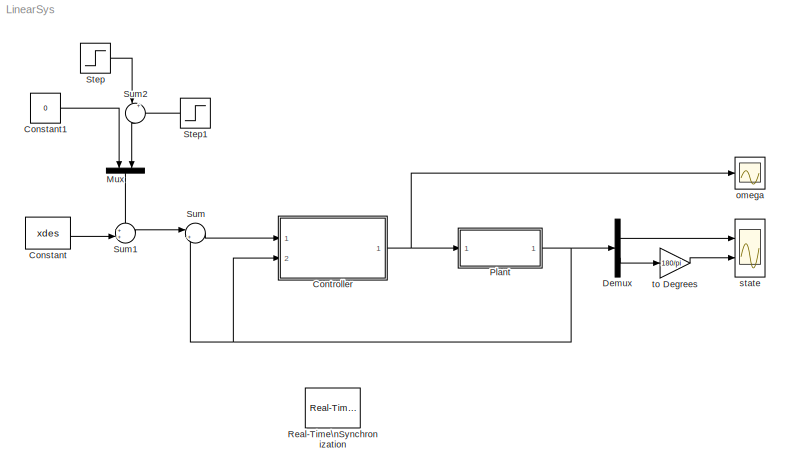
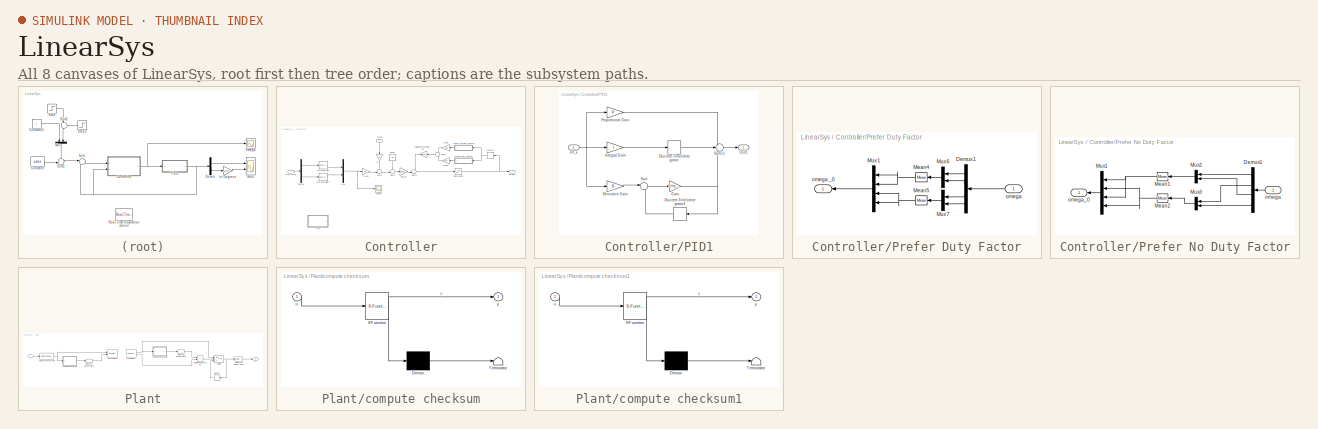
[diagram: thumbnail index - all 8 canvases of the model, root first then tree order]
MODEL LinearSys
KIND model
BLOCK [Constant] Constant
  SID = 16
  Value = xdes
BLOCK [Constant] Constant1
  SID = 122
  Value = 0
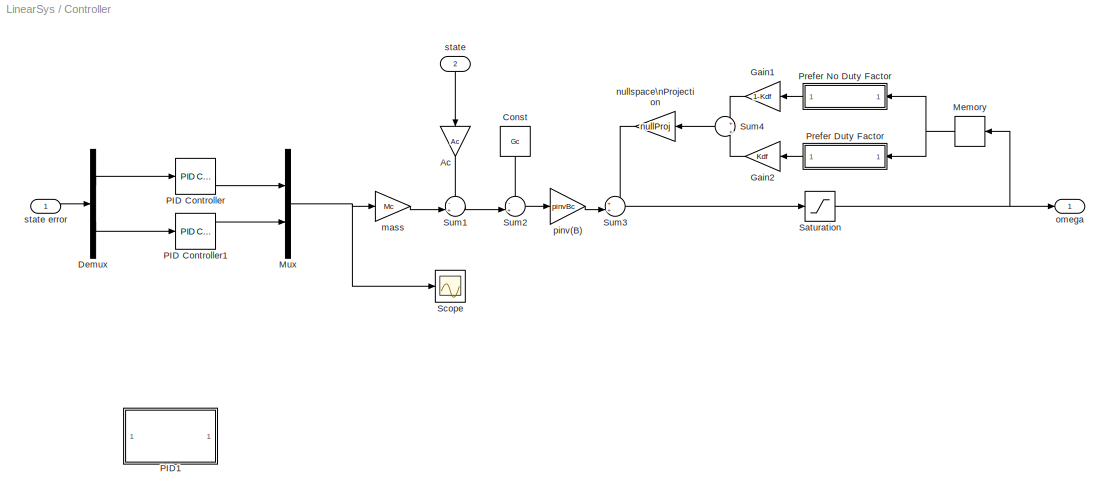
BLOCK [SubSystem] Controller
  FunctionWithSeparateData = off
  MaskHideContents = off
  MinAlgLoopOccurrences = off
  Opaque = off
  Ports = [2, 1]
  PropExecContextOutsideSubsystem = off
  RTWSystemCode = Auto
  RequestExecContextInheritance = off
  SID = 81
BLOCK [Gain] Controller/Ac
  Gain = Ac
  Multiplication = Matrix(K*u)
  OutDataTypeStr = Inherit: Inherit via internal rule
  ParamDataTypeStr = Inherit: Inherit via internal rule
  SID = 31
  SaturateOnIntegerOverflow = off
BLOCK [Constant] Controller/Const
  SID = 34
  Value = Gc
BLOCK [Demux] Controller/Demux
  DisplayOption = bar
  Outputs = 2
  Ports = [1, 2]
  SID = 219
BLOCK [Gain] Controller/Gain1
  Gain = 1-Kdf
  OutDataTypeStr = Inherit: Inherit via internal rule
  ParamDataTypeStr = Inherit: Inherit via internal rule
  SID = 41
  SaturateOnIntegerOverflow = off
BLOCK [Gain] Controller/Gain2
  Gain = Kdf
  OutDataTypeStr = Inherit: Inherit via internal rule
  ParamDataTypeStr = Inherit: Inherit via internal rule
  SID = 42
  SaturateOnIntegerOverflow = off
BLOCK [Memory] Controller/Memory
  InheritSampleTime = on
  SID = 43
  X0 = omega_0
BLOCK [Mux] Controller/Mux
  DisplayOption = bar
  Inputs = 2
  Ports = [2, 1]
  SID = 256
BLOCK [Reference] Controller/PID Controller  REF=simulink/Continuous/PID Controller
  AntiWindupMode = none
  Controller = PID
  D = Kdy
  DOutDataTypeStr = Inherit: Inherit via internal rule
  DOutMax = []
  DOutMin = []
  DParamDataTypeStr = Inherit: Inherit via internal rule
  DParamMax = []
  DParamMin = []
  ExternalReset = none
  FilterContinuousStateAttributes = ''
  FilterMethod = Forward Euler
  FilterOutDataTypeStr = Inherit: Inherit via internal rule
  FilterOutMax = []
  FilterOutMin = []
  FilterRTWStateStorageClass = Auto
  FilterStateMustResolveToSignalObject = off
  Form = Parallel
  I = Kiy
  IOutDataTypeStr = Inherit: Inherit via internal rule
  IOutMax = []
  IOutMin = []
  IParamDataTypeStr = Inherit: Inherit via internal rule
  IParamMax = []
  IParamMin = []
  IgnoreLimit = off
  InitialConditionForFilter = 0
  InitialConditionForIntegrator = 0
  InitialConditionSource = internal
  IntegratorContinuousStateAttributes = ''
  IntegratorMethod = Forward Euler
  IntegratorOutDataTypeStr = Inherit: Inherit via internal rule
  IntegratorOutMax = []
  IntegratorOutMin = []
  IntegratorRTWStateStorageClass = Auto
  IntegratorStateMustResolveToSignalObject = off
  Kb = 1
  KbOutDataTypeStr = Inherit: Inherit via internal rule
  KbOutMax = []
  KbOutMin = []
  KbParamDataTypeStr = Inherit: Inherit via internal rule
  KbParamMax = []
  KbParamMin = []
  Kt = 1
  KtOutDataTypeStr = Inherit: Inherit via internal rule
  KtOutMax = []
  KtOutMin = []
  KtParamDataTypeStr = Inherit: Inherit via internal rule
  KtParamMax = []
  KtParamMin = []
  LimitOutput = off
  LinearizeAsGain = on
  LockScale = off
  LowerSaturationLimit = -inf
  N = 1000
  NOutDataTypeStr = Inherit: Inherit via internal rule
  NOutMax = []
  NOutMin = []
  NParamDataTypeStr = Inherit: Inherit via internal rule
  NParamMax = []
  NParamMin = []
  P = Kpy
  POutDataTypeStr = Inherit: Inherit via internal rule
  POutMax = []
  POutMin = []
  PParamDataTypeStr = Inherit: Inherit via internal rule
  PParamMax = []
  PParamMin = []
  Ports = [1, 1]
  RndMeth = Floor
  SID = 254
  SampleTime = .01
  SaturateOnIntegerOverflow = off
  SaturationOutDataTypeStr = Inherit: Same as input
  SaturationOutMax = []
  SaturationOutMin = []
  SourceBlock = simulink/Continuous/PID Controller
  SourceType = PID 1dof
  SumAccumDataTypeStr = Inherit: Inherit via internal rule
  SumDAccumDataTypeStr = Inherit: Inherit via internal rule
  SumDOutDataTypeStr = Inherit: Inherit via internal rule
  SumDOutMax = []
  SumDOutMin = []
  SumI1AccumDataTypeStr = Inherit: Inherit via internal rule
  SumI1OutDataTypeStr = Inherit: Inherit via internal rule
  SumI1OutMax = []
  SumI1OutMin = []
  SumI2AccumDataTypeStr = Inherit: Inherit via internal rule
  SumI2OutDataTypeStr = Inherit: Inherit via internal rule
  SumI2OutMax = []
  SumI2OutMin = []
  SumI3AccumDataTypeStr = Inherit: Inherit via internal rule
  SumI3OutDataTypeStr = Inherit: Inherit via internal rule
  SumI3OutMax = []
  SumI3OutMin = []
  SumOutDataTypeStr = Inherit: Inherit via internal rule
  SumOutMax = []
  SumOutMin = []
  TimeDomain = Discrete-time
  TrackingMode = off
  UpperSaturationLimit = inf
  ZeroCross = on
BLOCK [Reference] Controller/PID Controller1  REF=simulink/Continuous/PID Controller
  AntiWindupMode = none
  Controller = PID
  D = Kdth
  DOutDataTypeStr = Inherit: Inherit via internal rule
  DOutMax = []
  DOutMin = []
  DParamDataTypeStr = Inherit: Inherit via internal rule
  DParamMax = []
  DParamMin = []
  ExternalReset = none
  FilterContinuousStateAttributes = ''
  FilterMethod = Forward Euler
  FilterOutDataTypeStr = Inherit: Inherit via internal rule
  FilterOutMax = []
  FilterOutMin = []
  FilterRTWStateStorageClass = Auto
  FilterStateMustResolveToSignalObject = off
  Form = Parallel
  I = Kith
  IOutDataTypeStr = Inherit: Inherit via internal rule
  IOutMax = []
  IOutMin = []
  IParamDataTypeStr = Inherit: Inherit via internal rule
  IParamMax = []
  IParamMin = []
  IgnoreLimit = off
  InitialConditionForFilter = 0
  InitialConditionForIntegrator = 0
  InitialConditionSource = internal
  IntegratorContinuousStateAttributes = ''
  IntegratorMethod = Forward Euler
  IntegratorOutDataTypeStr = Inherit: Inherit via internal rule
  IntegratorOutMax = []
  IntegratorOutMin = []
  IntegratorRTWStateStorageClass = Auto
  IntegratorStateMustResolveToSignalObject = off
  Kb = 1
  KbOutDataTypeStr = Inherit: Inherit via internal rule
  KbOutMax = []
  KbOutMin = []
  KbParamDataTypeStr = Inherit: Inherit via internal rule
  KbParamMax = []
  KbParamMin = []
  Kt = 1
  KtOutDataTypeStr = Inherit: Inherit via internal rule
  KtOutMax = []
  KtOutMin = []
  KtParamDataTypeStr = Inherit: Inherit via internal rule
  KtParamMax = []
  KtParamMin = []
  LimitOutput = off
  LinearizeAsGain = on
  LockScale = off
  LowerSaturationLimit = -inf
  N = 1000
  NOutDataTypeStr = Inherit: Inherit via internal rule
  NOutMax = []
  NOutMin = []
  NParamDataTypeStr = Inherit: Inherit via internal rule
  NParamMax = []
  NParamMin = []
  P = Kpth
  POutDataTypeStr = Inherit: Inherit via internal rule
  POutMax = []
  POutMin = []
  PParamDataTypeStr = Inherit: Inherit via internal rule
  PParamMax = []
  PParamMin = []
  Ports = [1, 1]
  RndMeth = Floor
  SID = 255
  SampleTime = .01
  SaturateOnIntegerOverflow = off
  SaturationOutDataTypeStr = Inherit: Same as input
  SaturationOutMax = []
  SaturationOutMin = []
  SourceBlock = simulink/Continuous/PID Controller
  SourceType = PID 1dof
  SumAccumDataTypeStr = Inherit: Inherit via internal rule
  SumDAccumDataTypeStr = Inherit: Inherit via internal rule
  SumDOutDataTypeStr = Inherit: Inherit via internal rule
  SumDOutMax = []
  SumDOutMin = []
  SumI1AccumDataTypeStr = Inherit: Inherit via internal rule
  SumI1OutDataTypeStr = Inherit: Inherit via internal rule
  SumI1OutMax = []
  SumI1OutMin = []
  SumI2AccumDataTypeStr = Inherit: Inherit via internal rule
  SumI2OutDataTypeStr = Inherit: Inherit via internal rule
  SumI2OutMax = []
  SumI2OutMin = []
  SumI3AccumDataTypeStr = Inherit: Inherit via internal rule
  SumI3OutDataTypeStr = Inherit: Inherit via internal rule
  SumI3OutMax = []
  SumI3OutMin = []
  SumOutDataTypeStr = Inherit: Inherit via internal rule
  SumOutMax = []
  SumOutMin = []
  TimeDomain = Discrete-time
  TrackingMode = off
  UpperSaturationLimit = inf
  ZeroCross = on
BLOCK [SubSystem] Controller/PID1
  Commented = on
  FunctionWithSeparateData = off
  MaskHideContents = off
  MinAlgLoopOccurrences = off
  Opaque = off
  Ports = [1, 1]
  PropExecContextOutsideSubsystem = off
  RTWSystemCode = Auto
  RequestExecContextInheritance = off
  SID = 208
BLOCK [Gain] Controller/PID1/Derivative Gain
  Gain = D
  Multiplication = Matrix(K*u)
  OutDataTypeStr = Inherit: Inherit via internal rule
  ParamDataTypeStr = Inherit: Inherit via internal rule
  SID = 210
  SaturateOnIntegerOverflow = off
BLOCK [DiscreteIntegrator] Controller/PID1/Discrete-Time\nIntegrator
  ICPrevOutput = DiscIntNeverNeededParam
  ICPrevScaledInput = DiscIntNeverNeededParam
  Ports = [1, 1]
  SID = 211
  SampleTime = .01
BLOCK [DiscreteIntegrator] Controller/PID1/Discrete-Time\nIntegrator1
  ICPrevOutput = DiscIntNeverNeededParam
  ICPrevScaledInput = DiscIntNeverNeededParam
  Ports = [1, 1]
  SID = 212
  SampleTime = .01
BLOCK [Gain] Controller/PID1/Gain
  Gain = Filter_Coef
  OutDataTypeStr = Inherit: Inherit via internal rule
  ParamDataTypeStr = Inherit: Inherit via internal rule
  SID = 213
  SaturateOnIntegerOverflow = off
BLOCK [Gain] Controller/PID1/Integral Gain
  DisableCoverage = on
  Gain = I
  Multiplication = Matrix(K*u)
  OutDataTypeStr = Inherit: Inherit via internal rule
  ParamDataTypeStr = Inherit: Inherit via internal rule
  SID = 214
  SaturateOnIntegerOverflow = off
BLOCK [Outport] Controller/PID1/Out1
  IconDisplay = Port number
  SID = 218
BLOCK [Gain] Controller/PID1/Proportional Gain
  Gain = P
  Multiplication = Matrix(K*u)
  OutDataTypeStr = Inherit: Inherit via internal rule
  ParamDataTypeStr = Inherit: Inherit via internal rule
  SID = 215
  SaturateOnIntegerOverflow = off
BLOCK [Sum] Controller/PID1/Sum
  IconShape = round
  InputSameDT = off
  Inputs = |+-
  OutDataTypeStr = Inherit: Inherit via internal rule
  Ports = [2, 1]
  SID = 216
  SaturateOnIntegerOverflow = off
BLOCK [Sum] Controller/PID1/Sum11
  IconShape = round
  InputSameDT = off
  Inputs = +++
  OutDataTypeStr = Inherit: Inherit via internal rule
  Ports = [3, 1]
  SID = 217
  SaturateOnIntegerOverflow = off
BLOCK [Inport] Controller/PID1/err_x
  IconDisplay = Port number
  SID = 209
BLOCK [SubSystem] Controller/Prefer Duty Factor
  FunctionWithSeparateData = off
  MaskHideContents = off
  MinAlgLoopOccurrences = off
  Opaque = off
  Ports = [1, 1]
  PropExecContextOutsideSubsystem = off
  RTWSystemCode = Auto
  RequestExecContextInheritance = off
  SID = 99
BLOCK [Demux] Controller/Prefer Duty Factor/Demux1
  DisplayOption = bar
  Ports = [1, 4]
  SID = 101
BLOCK [Reference] Controller/Prefer Duty Factor/Mean4  REF=dspstat3/Mean
  InputProcessing = Columns as channels (frame based)
  LockScale = off
  Ports = [1, 1]
  SID = 102
  SourceBlock = dspstat3/Mean
  SourceType = Mean
  UserData = DataTag0
  UserDataPersistent = on
  accumDataTypeStr = Inherit: Same as input
  accumFracLength = 30
  accumLastDataTypeStr = Inherit: Same as input
  accumMode = Same as input
  accumWordLength = 32
  additionalParams = off
  allowOverrides = on
  dimension = 1
  directionMode = Each column
  outputDataTypeStr = Inherit: Same as accumulator
  outputFracLength = 30
  outputLastDataTypeStr = Inherit: Same as accumulator
  outputMax = []
  outputMin = []
  outputMode = Same as accumulator
  outputWordLength = 32
  overflowMode = off
  reset_popup = None
  roiEnable = off
  roiFlag = off
  roiOutput = Individual statistics for each ROI
  roiPortion = Entire ROI
  roiType = Rectangles
  roundingMode = Floor
  run = off
  treatSBRowAsCol = on
BLOCK [Reference] Controller/Prefer Duty Factor/Mean5  REF=dspstat3/Mean
  InputProcessing = Columns as channels (frame based)
  LockScale = off
  Ports = [1, 1]
  SID = 103
  SourceBlock = dspstat3/Mean
  SourceType = Mean
  UserData = DataTag1
  UserDataPersistent = on
  accumDataTypeStr = Inherit: Same as input
  accumFracLength = 30
  accumLastDataTypeStr = Inherit: Same as input
  accumMode = Same as input
  accumWordLength = 32
  additionalParams = off
  allowOverrides = on
  dimension = 1
  directionMode = Each column
  outputDataTypeStr = Inherit: Same as accumulator
  outputFracLength = 30
  outputLastDataTypeStr = Inherit: Same as accumulator
  outputMax = []
  outputMin = []
  outputMode = Same as accumulator
  outputWordLength = 32
  overflowMode = off
  reset_popup = None
  roiEnable = off
  roiFlag = off
  roiOutput = Individual statistics for each ROI
  roiPortion = Entire ROI
  roiType = Rectangles
  roundingMode = Floor
  run = off
  treatSBRowAsCol = on
BLOCK [Mux] Controller/Prefer Duty Factor/Mux1
  DisplayOption = bar
  Ports = [4, 1]
  SID = 104
BLOCK [Mux] Controller/Prefer Duty Factor/Mux6
  DisplayOption = bar
  Inputs = 2
  Ports = [2, 1]
  SID = 105
BLOCK [Mux] Controller/Prefer Duty Factor/Mux7
  DisplayOption = bar
  Inputs = 2
  Ports = [2, 1]
  SID = 106
BLOCK [Inport] Controller/Prefer Duty Factor/omega
  IconDisplay = Port number
  SID = 100
BLOCK [Outport] Controller/Prefer Duty Factor/omega _0
  IconDisplay = Port number
  SID = 107
BLOCK [SubSystem] Controller/Prefer No Duty Factor
  FunctionWithSeparateData = off
  MaskHideContents = off
  MinAlgLoopOccurrences = off
  Opaque = off
  Ports = [1, 1]
  PropExecContextOutsideSubsystem = off
  RTWSystemCode = Auto
  RequestExecContextInheritance = off
  SID = 108
BLOCK [Demux] Controller/Prefer No Duty Factor/Demux1
  DisplayOption = bar
  Ports = [1, 4]
  SID = 110
BLOCK [Reference] Controller/Prefer No Duty Factor/Mean1  REF=dspstat3/Mean
  InputProcessing = Columns as channels (frame based)
  LockScale = off
  Ports = [1, 1]
  SID = 111
  SourceBlock = dspstat3/Mean
  SourceType = Mean
  UserData = DataTag2
  UserDataPersistent = on
  accumDataTypeStr = Inherit: Same as input
  accumFracLength = 30
  accumLastDataTypeStr = Inherit: Same as input
  accumMode = Same as input
  accumWordLength = 32
  additionalParams = off
  allowOverrides = on
  dimension = 1
  directionMode = Each column
  outputDataTypeStr = Inherit: Same as accumulator
  outputFracLength = 30
  outputLastDataTypeStr = Inherit: Same as accumulator
  outputMax = []
  outputMin = []
  outputMode = Same as accumulator
  outputWordLength = 32
  overflowMode = off
  reset_popup = None
  roiEnable = off
  roiFlag = off
  roiOutput = Individual statistics for each ROI
  roiPortion = Entire ROI
  roiType = Rectangles
  roundingMode = Floor
  run = off
  treatSBRowAsCol = on
BLOCK [Reference] Controller/Prefer No Duty Factor/Mean2  REF=dspstat3/Mean
  InputProcessing = Columns as channels (frame based)
  LockScale = off
  Ports = [1, 1]
  SID = 112
  SourceBlock = dspstat3/Mean
  SourceType = Mean
  UserData = DataTag3
  UserDataPersistent = on
  accumDataTypeStr = Inherit: Same as input
  accumFracLength = 30
  accumLastDataTypeStr = Inherit: Same as input
  accumMode = Same as input
  accumWordLength = 32
  additionalParams = off
  allowOverrides = on
  dimension = 1
  directionMode = Each column
  outputDataTypeStr = Inherit: Same as accumulator
  outputFracLength = 30
  outputLastDataTypeStr = Inherit: Same as accumulator
  outputMax = []
  outputMin = []
  outputMode = Same as accumulator
  outputWordLength = 32
  overflowMode = off
  reset_popup = None
  roiEnable = off
  roiFlag = off
  roiOutput = Individual statistics for each ROI
  roiPortion = Entire ROI
  roiType = Rectangles
  roundingMode = Floor
  run = off
  treatSBRowAsCol = on
BLOCK [Mux] Controller/Prefer No Duty Factor/Mux1
  DisplayOption = bar
  Ports = [4, 1]
  SID = 113
BLOCK [Mux] Controller/Prefer No Duty Factor/Mux2
  DisplayOption = bar
  Inputs = 2
  Ports = [2, 1]
  SID = 114
BLOCK [Mux] Controller/Prefer No Duty Factor/Mux3
  DisplayOption = bar
  Inputs = 2
  Ports = [2, 1]
  SID = 115
BLOCK [Inport] Controller/Prefer No Duty Factor/omega
  IconDisplay = Port number
  SID = 109
BLOCK [Outport] Controller/Prefer No Duty Factor/omega_0
  IconDisplay = Port number
  SID = 116
BLOCK [Saturate] Controller/Saturation
  InputPortMap = u0
  LowerLimit = 10
  Ports = [1, 1]
  SID = 80
  UpperLimit = 100
BLOCK [Scope] Controller/Scope
  DataFormat = StructureWithTime
  Floating = off
  NumInputPorts = 1
  Ports = [1]
  SID = 207
  SampleInput = on
  SampleTime = 0
  ShowLegends = off
BLOCK [Sum] Controller/Sum1
  IconShape = round
  InputSameDT = off
  Inputs = -+|
  OutDataTypeStr = Inherit: Inherit via internal rule
  Ports = [2, 1]
  SID = 32
  SaturateOnIntegerOverflow = off
BLOCK [Sum] Controller/Sum2
  IconShape = round
  InputSameDT = off
  Inputs = -+|
  OutDataTypeStr = Inherit: Inherit via internal rule
  Ports = [2, 1]
  SID = 33
  SaturateOnIntegerOverflow = off
BLOCK [Sum] Controller/Sum3
  IconShape = round
  InputSameDT = off
  Inputs = ++|
  OutDataTypeStr = Inherit: Inherit via internal rule
  Ports = [2, 1]
  SID = 68
  SaturateOnIntegerOverflow = off
BLOCK [Sum] Controller/Sum4
  IconShape = round
  InputSameDT = off
  Inputs = +|+
  OutDataTypeStr = Inherit: Inherit via internal rule
  Ports = [2, 1]
  SID = 66
  SaturateOnIntegerOverflow = off
BLOCK [Gain] Controller/mass
  Gain = Mc
  Multiplication = Matrix(K*u)
  OutDataTypeStr = Inherit: Inherit via internal rule
  ParamDataTypeStr = Inherit: Inherit via internal rule
  SID = 30
  SaturateOnIntegerOverflow = off
BLOCK [Gain] Controller/nullspace\nProjection
  Gain = nullProj
  Multiplication = Matrix(K*u)
  OutDataTypeStr = Inherit: Inherit via internal rule
  ParamDataTypeStr = Inherit: Inherit via internal rule
  SID = 69
  SaturateOnIntegerOverflow = off
BLOCK [Outport] Controller/omega
  IconDisplay = Port number
  SID = 84
BLOCK [Gain] Controller/pinv(B)
  Gain = pinvBc
  Multiplication = Matrix(K*u)
  OutDataTypeStr = Inherit: Inherit via internal rule
  ParamDataTypeStr = Inherit: Inherit via internal rule
  SID = 35
  SaturateOnIntegerOverflow = off
BLOCK [Inport] Controller/state
  IconDisplay = Port number
  Port = 2
  SID = 83
BLOCK [Inport] Controller/state error
  IconDisplay = Port number
  SID = 82
BLOCK [Demux] Demux
  DisplayOption = bar
  Outputs = 2
  Ports = [1, 2]
  SID = 85
BLOCK [Mux] Mux
  DisplayOption = bar
  Inputs = 2
  Ports = [2, 1]
  SID = 123
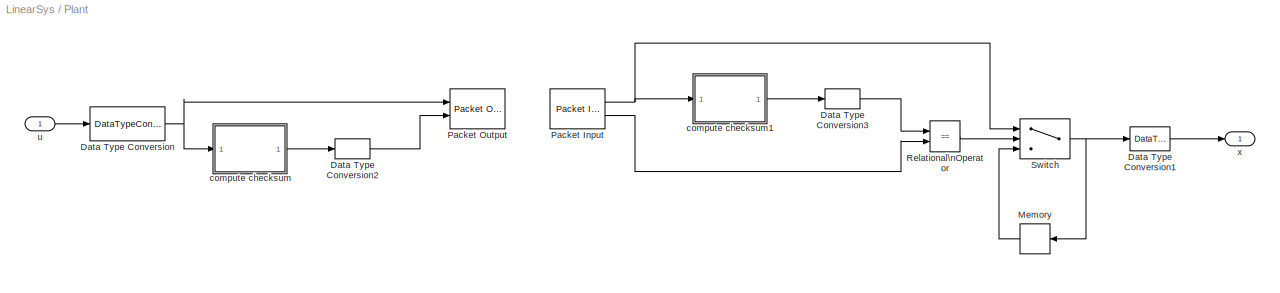
BLOCK [SubSystem] Plant
  FunctionWithSeparateData = off
  MaskHideContents = off
  MinAlgLoopOccurrences = off
  Opaque = off
  Ports = [1, 1]
  PropExecContextOutsideSubsystem = off
  RTWSystemCode = Auto
  RequestExecContextInheritance = off
  SID = 257
BLOCK [DataTypeConversion] Plant/Data Type Conversion
  OutDataTypeStr = single
  RndMeth = Floor
  SID = 259
  SaturateOnIntegerOverflow = off
BLOCK [DataTypeConversion] Plant/Data Type Conversion1
  OutDataTypeStr = double
  RndMeth = Floor
  SID = 260
  SaturateOnIntegerOverflow = off
BLOCK [DataTypeConversion] Plant/Data Type Conversion2
  OutDataTypeStr = uint8
  RndMeth = Floor
  SID = 261
  SaturateOnIntegerOverflow = off
BLOCK [DataTypeConversion] Plant/Data Type Conversion3
  OutDataTypeStr = uint8
  RndMeth = Floor
  SID = 262
  SaturateOnIntegerOverflow = off
BLOCK [Memory] Plant/Memory
  SID = 263
  X0 = [x0(1), x0(3)]
BLOCK [Reference] Plant/Packet Input  REF=rtwinlib/Packet Input
  AttributesFormatString = Standard Devices\\nSerial Port [5h]
  ByteOrder = 1
  DataTypes = {'2*single', 'uint8'}
  DrvAddress = 5
  DrvName = Standard_Devices/Serial_Port
  DrvOptions = [115200 8 0 0 0 0 0 0]
  MaxMissedTicks = 10
  PacketID = 1
  PacketSize = 9
  Ports = [0, 2]
  SID = 264
  SampleTime = 0.01
  ShowError = off
  ShowMissedTicks = off
  ShowReady = off
  ShowTimestamp = off
  SourceBlock = rtwinlib/Packet Input
  SourceType = RTWin Packet Input
  YieldWhenWaiting = off
BLOCK [Reference] Plant/Packet Output  REF=rtwinlib/Packet Output
  AttributesFormatString = Standard Devices\\nSerial Port [5h]
  ByteOrder = 1
  DataTypes = {'4*single', 'uint8'}
  DrvAddress = 5
  DrvName = Standard_Devices/Serial_Port
  DrvOptions = [115200 8 0 0 0 0 0 0]
  FinalValue = []
  InitialValue = []
  MaxMissedTicks = 10
  PacketID = 1
  PacketSize = 17
  Ports = [2]
  SID = 265
  SampleTime = 0.01
  ShowError = off
  ShowMissedTicks = off
  ShowReady = off
  SourceBlock = rtwinlib/Packet Output
  SourceType = RTWin Packet Output
  YieldWhenWaiting = off
BLOCK [RelationalOperator] Plant/Relational\nOperator
  InputSameDT = off
  Operator = ==
  OutDataTypeStr = boolean
  Ports = [2, 1]
  SID = 266
BLOCK [Switch] Plant/Switch
  Criteria = u2 ~= 0
  InputSameDT = off
  SID = 267
  SaturateOnIntegerOverflow = off
BLOCK [SubSystem] Plant/compute checksum
  ErrorFcn = Stateflow.Translate.translate
  FunctionWithSeparateData = off
  MaskHideContents = off
  MinAlgLoopOccurrences = off
  Opaque = off
  PermitHierarchicalResolution = ExplicitOnly
  Ports = [1, 1]
  PropExecContextOutsideSubsystem = off
  RTWSystemCode = Auto
  RequestExecContextInheritance = off
  SFBlockType = MATLAB Function
  SID = 268
  TreatAsAtomicUnit = on
BLOCK [Demux] Plant/compute checksum/ Demux 
  Outputs = 1
  Ports = [1, 1]
  SID = 268::19
BLOCK [S-Function] Plant/compute checksum/ SFunction 
  EnableBusSupport = on
  FunctionName = sf_sfun
  PortCounts = [1 2]
  Ports = [1, 2]
  SID = 268::18
  Tag = Stateflow S-Function LinearSys 1
BLOCK [Terminator] Plant/compute checksum/ Terminator 
  SID = 268::20
BLOCK [Inport] Plant/compute checksum/u
  IconDisplay = Port number
  SID = 268::1
BLOCK [Outport] Plant/compute checksum/y
  IconDisplay = Port number
  SID = 268::5
BLOCK [SubSystem] Plant/compute checksum1
  ErrorFcn = Stateflow.Translate.translate
  FunctionWithSeparateData = off
  MaskHideContents = off
  MinAlgLoopOccurrences = off
  Opaque = off
  PermitHierarchicalResolution = ExplicitOnly
  Ports = [1, 1]
  PropExecContextOutsideSubsystem = off
  RTWSystemCode = Auto
  RequestExecContextInheritance = off
  SFBlockType = MATLAB Function
  SID = 269
  TreatAsAtomicUnit = on
BLOCK [Demux] Plant/compute checksum1/ Demux 
  Outputs = 1
  Ports = [1, 1]
  SID = 269::19
BLOCK [S-Function] Plant/compute checksum1/ SFunction 
  EnableBusSupport = on
  FunctionName = sf_sfun
  PortCounts = [1 2]
  Ports = [1, 2]
  SID = 269::18
  Tag = Stateflow S-Function LinearSys 2
BLOCK [Terminator] Plant/compute checksum1/ Terminator 
  SID = 269::20
BLOCK [Inport] Plant/compute checksum1/u
  IconDisplay = Port number
  SID = 269::1
BLOCK [Outport] Plant/compute checksum1/y
  IconDisplay = Port number
  SID = 269::5
BLOCK [Inport] Plant/u
  IconDisplay = Port number
  SID = 258
BLOCK [Outport] Plant/x
  IconDisplay = Port number
  SID = 270
BLOCK [Reference] Real-Time\nSynchronization  REF=rtwinlib/Real-Time\nSynchronization
  MaxMissedTicks = 10
  Ports = []
  SID = 272
  SampleTime = 0.01
  ShowMissedTicks = off
  SourceBlock = rtwinlib/Real-Time\nSynchronization
  SourceType = RTWin Real-Time Synchronization
  YieldWhenWaiting = off
BLOCK [Step] Step
  After = 5*pi/180
  SID = 121
  SampleTime = 0
  Time = 5
BLOCK [Step] Step1
  After = -5*pi/180
  SID = 125
  SampleTime = 0
  Time = 10
BLOCK [Sum] Sum
  IconShape = round
  InputSameDT = off
  Inputs = |+-
  OutDataTypeStr = Inherit: Inherit via internal rule
  Ports = [2, 1]
  SID = 15
  SaturateOnIntegerOverflow = off
BLOCK [Sum] Sum1
  IconShape = round
  InputSameDT = off
  Inputs = ++|
  OutDataTypeStr = Inherit: Inherit via internal rule
  Ports = [2, 1]
  SID = 120
  SaturateOnIntegerOverflow = off
BLOCK [Sum] Sum2
  IconShape = round
  InputSameDT = off
  Inputs = |++
  OutDataTypeStr = Inherit: Inherit via internal rule
  Ports = [2, 1]
  SID = 124
  SaturateOnIntegerOverflow = off
BLOCK [Scope] omega
  DataFormat = StructureWithTime
  Floating = off
  LimitDataPoints = off
  NumInputPorts = 1
  Ports = [1]
  SID = 40
  SampleInput = on
  SampleTime = 0
  SaveName = ScopeData1
  ShowLegends = off
  TimeRange = 10
  YMax = 105
  YMin = 95
  ZoomMode = xonly
BLOCK [Scope] state
  DataFormat = StructureWithTime
  Floating = off
  LimitDataPoints = off
  NumInputPorts = 2
  Ports = [2]
  SID = 3
  SampleInput = on
  SampleTime = 0
  SaveName = state
  SaveToWorkspace = on
  ShowLegends = off
  TimeRange = 10
  YMax = 0.0155~3
  YMin = 0.0085~-3
  ZoomMode = xonly
BLOCK [Gain] to Degrees
  Gain = 180/pi
  OutDataTypeStr = Inherit: Inherit via internal rule
  ParamDataTypeStr = Inherit: Inherit via internal rule
  SID = 88
  SaturateOnIntegerOverflow = off
LINE Constant1:1 -> Mux:1
LINE Constant:1 -> Sum1:2
LINE Controller/Ac:1 -> Controller/Sum1:1
LINE Controller/Const:1 -> Controller/Sum2:1
LINE Controller/Demux:1 -> Controller/PID Controller:1
LINE Controller/Demux:2 -> Controller/PID Controller1:1
LINE Controller/Gain1:1 -> Controller/Sum4:1
LINE Controller/Gain2:1 -> Controller/Sum4:2
NET Controller/Memory:1 -> Controller/Prefer Duty Factor:1, Controller/Prefer No Duty Factor:1
NET Controller/Mux:1 -> Controller/Scope:1, Controller/mass:1
LINE Controller/PID Controller1:1 -> Controller/Mux:2
LINE Controller/PID Controller:1 -> Controller/Mux:1
LINE Controller/PID1/Derivative Gain:1 -> Controller/PID1/Sum:1
LINE Controller/PID1/Discrete-Time\nIntegrator1:1 -> Controller/PID1/Sum:2
LINE Controller/PID1/Discrete-Time\nIntegrator:1 -> Controller/PID1/Sum11:2
NET Controller/PID1/Gain:1 -> Controller/PID1/Discrete-Time\nIntegrator1:1, Controller/PID1/Sum11:3
LINE Controller/PID1/Integral Gain:1 -> Controller/PID1/Discrete-Time\nIntegrator:1
LINE Controller/PID1/Proportional Gain:1 -> Controller/PID1/Sum11:1
LINE Controller/PID1/Sum11:1 -> Controller/PID1/Out1:1
LINE Controller/PID1/Sum:1 -> Controller/PID1/Gain:1
NET Controller/PID1/err_x:1 -> Controller/PID1/Derivative Gain:1, Controller/PID1/Integral Gain:1, Controller/PID1/Proportional Gain:1
LINE Controller/Prefer Duty Factor/Demux1:1 -> Controller/Prefer Duty Factor/Mux6:1
LINE Controller/Prefer Duty Factor/Demux1:2 -> Controller/Prefer Duty Factor/Mux6:2
LINE Controller/Prefer Duty Factor/Demux1:3 -> Controller/Prefer Duty Factor/Mux7:1
LINE Controller/Prefer Duty Factor/Demux1:4 -> Controller/Prefer Duty Factor/Mux7:2
NET Controller/Prefer Duty Factor/Mean4:1 -> Controller/Prefer Duty Factor/Mux1:1, Controller/Prefer Duty Factor/Mux1:2
NET Controller/Prefer Duty Factor/Mean5:1 -> Controller/Prefer Duty Factor/Mux1:3, Controller/Prefer Duty Factor/Mux1:4
LINE Controller/Prefer Duty Factor/Mux1:1 -> Controller/Prefer Duty Factor/omega _0:1
LINE Controller/Prefer Duty Factor/Mux6:1 -> Controller/Prefer Duty Factor/Mean4:1
LINE Controller/Prefer Duty Factor/Mux7:1 -> Controller/Prefer Duty Factor/Mean5:1
LINE Controller/Prefer Duty Factor/omega:1 -> Controller/Prefer Duty Factor/Demux1:1
LINE Controller/Prefer Duty Factor:1 -> Controller/Gain2:1
LINE Controller/Prefer No Duty Factor/Demux1:1 -> Controller/Prefer No Duty Factor/Mux2:1
LINE Controller/Prefer No Duty Factor/Demux1:2 -> Controller/Prefer No Duty Factor/Mux3:1
LINE Controller/Prefer No Duty Factor/Demux1:3 -> Controller/Prefer No Duty Factor/Mux2:2
LINE Controller/Prefer No Duty Factor/Demux1:4 -> Controller/Prefer No Duty Factor/Mux3:2
NET Controller/Prefer No Duty Factor/Mean1:1 -> Controller/Prefer No Duty Factor/Mux1:1, Controller/Prefer No Duty Factor/Mux1:3
NET Controller/Prefer No Duty Factor/Mean2:1 -> Controller/Prefer No Duty Factor/Mux1:2, Controller/Prefer No Duty Factor/Mux1:4
LINE Controller/Prefer No Duty Factor/Mux1:1 -> Controller/Prefer No Duty Factor/omega_0:1
LINE Controller/Prefer No Duty Factor/Mux2:1 -> Controller/Prefer No Duty Factor/Mean1:1
LINE Controller/Prefer No Duty Factor/Mux3:1 -> Controller/Prefer No Duty Factor/Mean2:1
LINE Controller/Prefer No Duty Factor/omega:1 -> Controller/Prefer No Duty Factor/Demux1:1
LINE Controller/Prefer No Duty Factor:1 -> Controller/Gain1:1
NET Controller/Saturation:1 -> Controller/Memory:1, Controller/omega:1
LINE Controller/Sum1:1 -> Controller/Sum2:2
LINE Controller/Sum2:1 -> Controller/pinv(B):1
LINE Controller/Sum3:1 -> Controller/Saturation:1
LINE Controller/Sum4:1 -> Controller/nullspace\nProjection:1
LINE Controller/mass:1 -> Controller/Sum1:2
LINE Controller/nullspace\nProjection:1 -> Controller/Sum3:1
LINE Controller/pinv(B):1 -> Controller/Sum3:2
LINE Controller/state error:1 -> Controller/Demux:1
LINE Controller/state:1 -> Controller/Ac:1
NET Controller:1 -> Plant:1, omega:1
LINE Demux:1 -> state:1
LINE Demux:2 -> to Degrees:1
LINE Mux:1 -> Sum1:1
LINE Plant/Data Type Conversion1:1 -> Plant/x:1
LINE Plant/Data Type Conversion2:1 -> Plant/Packet Output:2
LINE Plant/Data Type Conversion3:1 -> Plant/Relational\nOperator:1
NET Plant/Data Type Conversion:1 -> Plant/Packet Output:1, Plant/compute checksum:1
LINE Plant/Memory:1 -> Plant/Switch:3
NET Plant/Packet Input:1 -> Plant/Switch:1, Plant/compute checksum1:1
LINE Plant/Packet Input:2 -> Plant/Relational\nOperator:2
LINE Plant/Relational\nOperator:1 -> Plant/Switch:2
NET Plant/Switch:1 -> Plant/Data Type Conversion1:1, Plant/Memory:1
LINE Plant/compute checksum/ Demux :1 -> Plant/compute checksum/ Terminator :1
LINE Plant/compute checksum/ SFunction :1 -> Plant/compute checksum/ Demux :1
LINE Plant/compute checksum/ SFunction :2 -> Plant/compute checksum/y:1
LINE Plant/compute checksum/u:1 -> Plant/compute checksum/ SFunction :1
LINE Plant/compute checksum1/ Demux :1 -> Plant/compute checksum1/ Terminator :1
LINE Plant/compute checksum1/ SFunction :1 -> Plant/compute checksum1/ Demux :1
LINE Plant/compute checksum1/ SFunction :2 -> Plant/compute checksum1/y:1
LINE Plant/compute checksum1/u:1 -> Plant/compute checksum1/ SFunction :1
LINE Plant/compute checksum1:1 -> Plant/Data Type Conversion3:1
LINE Plant/compute checksum:1 -> Plant/Data Type Conversion2:1
LINE Plant/u:1 -> Plant/Data Type Conversion:1
NET Plant:1 -> Controller:2, Demux:1, Sum:2
LINE Step1:1 -> Sum2:2
LINE Step:1 -> Sum2:1
LINE Sum1:1 -> Sum:1
LINE Sum2:1 -> Mux:2
LINE Sum:1 -> Controller:1
LINE to Degrees:1 -> state:2
note: NET lines group one-source signal fan-out (src -> all destinations, sorted); 1:1 wires keep LINE
CHART Plant/compute checksum states=1 transitions=1
  STATE_LABEL 'eML_blk_kernel()'
CHART Plant/compute checksum1 states=1 transitions=1
  STATE_LABEL 'eML_blk_kernel()'
